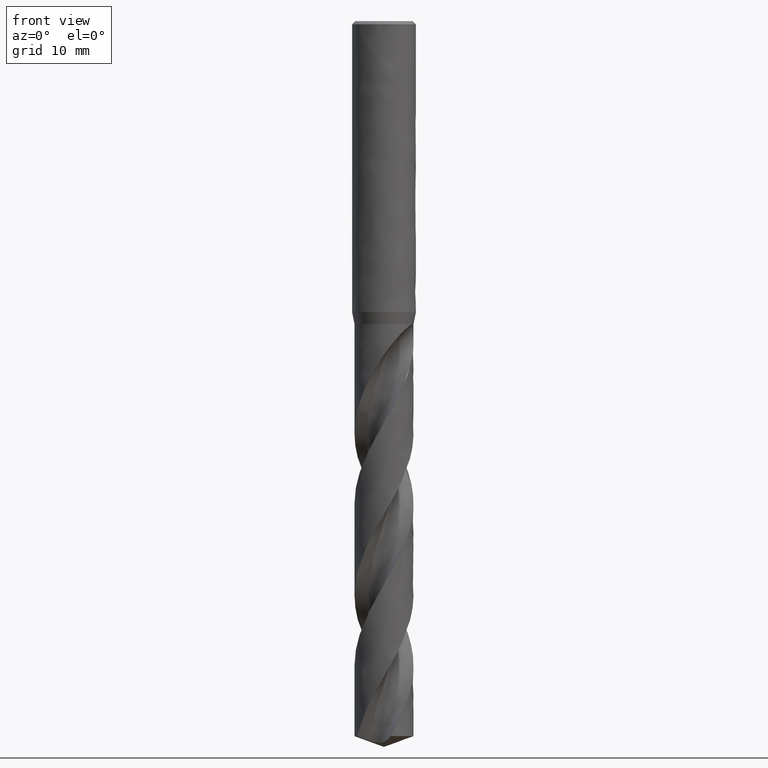
[diagram: clean part render]
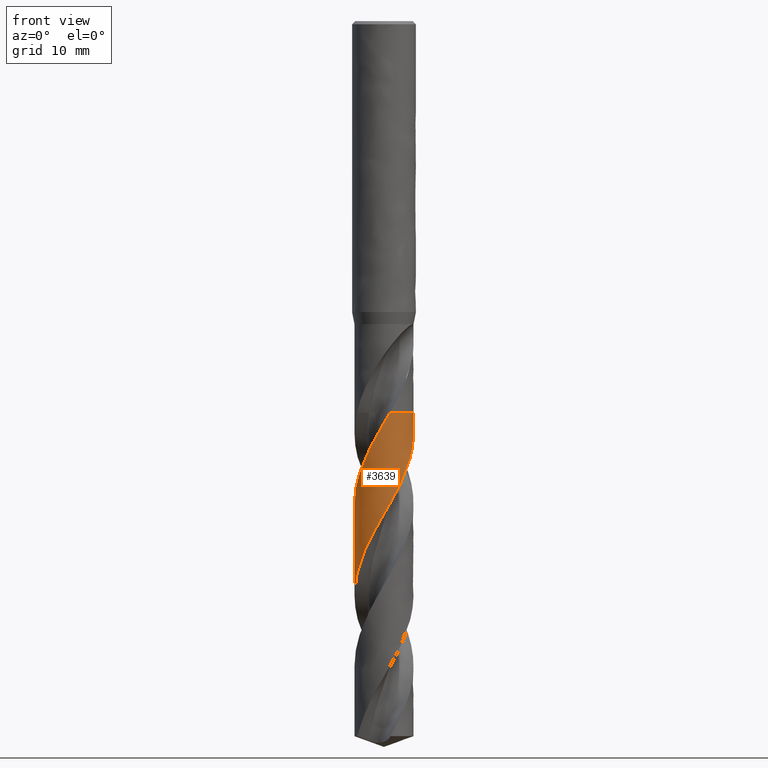
[diagram: same view with one face highlighted and labeled with its STEP entity id]
A machine part, front view. The second image highlights one B-rep face of the part: STEP entity #3639.
In plain terms, the highlighted face is a freeform B-spline surface patch.
Its self-contained STEP definition (entity closure, byte-faithful):
#1973 = VERTEX_POINT('', #1974);
#1974 = CARTESIAN_POINT('', (0.72714358249177, -3.62784539505765, -49.1));
#2050 = EDGE_CURVE('', #2051, #1973, #2053, .T.);
#2051 = VERTEX_POINT('', #2052);
#2052 = CARTESIAN_POINT('', (3.41056704865029, 1.43458440206941, -49.1));
#2053 = CIRCLE('', #2054, 3.7);
#2054 = AXIS2_PLACEMENT_3D('', #2055, #2056, #2057);
#2055 = CARTESIAN_POINT('', (1.84095513321743E-31, 3.00650789190675E-15, -49.1));
#2056 = DIRECTION('', (3.74939945665464E-33, 6.12323399573677E-17, -1.));
#2057 = DIRECTION('', (-1., 6.12323399573677E-17, 0.));
#3242 = EDGE_CURVE('', #2051, #3243, #3245, .T.);
#3243 = VERTEX_POINT('', #3244);
#3244 = CARTESIAN_POINT('', (-3.7, 4.63323017377835E-15, -71.9663909464213));
#3245 = B_SPLINE_CURVE_WITH_KNOTS('', 3, (#3246, #3247, #3248, #3249, #3250, #3251, #3252, #3253, #3254, #3255, #3256, #3257, #3258, #3259, #3260, #3261, #3262, #3263, #3264, #3265, #3266, #3267, #3268, #3269, #3270, #3271, #3272, #3273, #3274, #3275, #3276, #3277, #3278, #3279, #3280, #3281, #3282, #3283, #3284, #3285, #3286, #3287, #3288, #3289, #3290, #3291, #3292, #3293, #3294, #3295, #3296, #3297, #3298, #3299, #3300, #3301, #3302, #3303, #3304, #3305, #3306, #3307, #3308, #3309, #3310, #3311, #3312, #3313, #3314, #3315, #3316, #3317, #3318, #3319, #3320, #3321, #3322, #3323, #3324, #3325, #3326, #3327, #3328, #3329, #3330, #3331, #3332, #3333, #3334, #3335, #3336, #3337, #3338, #3339, #3340, #3341, #3342, #3343, #3344, #3345, #3346, #3347, #3348, #3349, #3350, #3351, #3352, #3353, #3354, #3355, #3356, #3357, #3358, #3359, #3360, #3361, #3362, #3363, #3364, #3365, #3366, #3367, #3368, #3369, #3370, #3371, #3372, #3373, #3374, #3375), .UNSPECIFIED., .F., .U., (4, 3, 3, 3, 3, 3, 3, 3, 3, 3, 3, 3, 3, 3, 3, 3, 3, 3, 3, 3, 3, 3, 3, 3, 3, 3, 3, 3, 3, 3, 3, 3, 3, 3, 3, 3, 3, 3, 3, 3, 3, 3, 3, 4), (10.555448820021, 10.8248205130351, 11.4889817246903, 12.1529726024439, 12.8167906537198, 13.4804325379984, 13.5388110314333, 14.2052948527528, 14.8715825006043, 15.5376811726015, 16.2035972184018, 16.86933592167, 17.5349016232911, 18.2002977721806, 18.8655269679581, 19.5305910465118, 20.1954913779098, 20.8602287099267, 21.5248031035643, 22.1892139146373, 22.8534597644177, 23.517538504727, 24.1814473171525, 24.8451827877249, 25.1404740618768, 25.1988482885492, 25.8653319677287, 26.5316206305821, 27.1977216439234, 27.8636412534247, 28.5293846860493, 29.1949562296614, 29.8603592926232, 30.5255964683822, 31.1906697677889, 31.8555805882083, 32.5203296591412, 33.1849170358249, 33.849342081974, 34.5136034433655, 35.1776990743116, 35.8416263425909, 36.5053818804481, 36.9049237263796), .UNSPECIFIED.);
#3246 = CARTESIAN_POINT('', (3.41056704865029, 1.43458440206941, -49.1));
#3247 = CARTESIAN_POINT('', (3.42790875579666, 1.39335639563393, -49.1778579612034));
#3248 = CARTESIAN_POINT('', (3.44450543114325, 1.35180710626196, -49.2557345464567));
#3249 = CARTESIAN_POINT('', (3.46033944921975, 1.30998125794746, -49.3335948555267));
#3250 = CARTESIAN_POINT('', (3.49937970810286, 1.20685570015691, -49.5255667610863));
#3251 = CARTESIAN_POINT('', (3.53381311034533, 1.10196290293011, -49.7175893742738));
#3252 = CARTESIAN_POINT('', (3.56348716277581, 0.995770676778559, -49.9095656663643));
#3253 = CARTESIAN_POINT('', (3.59315360485953, 0.889605685183733, -50.1014927233139));
#3254 = CARTESIAN_POINT('', (3.61807675981476, 0.782092577819872, -50.2934703451501));
#3255 = CARTESIAN_POINT('', (3.63814604377086, 0.673716085747212, -50.4854048606054));
#3256 = CARTESIAN_POINT('', (3.65821010400511, 0.565367802386485, -50.6772894184975));
#3257 = CARTESIAN_POINT('', (3.67343292657949, 0.456102739091882, -50.8692255505896));
#3258 = CARTESIAN_POINT('', (3.68374822319838, 0.346408758669597, -51.0611172541427));
#3259 = CARTESIAN_POINT('', (3.69406078229781, 0.236743889325431, -51.2529580326191));
#3260 = CARTESIAN_POINT('', (3.69947336968386, 0.126597113741289, -51.4448496753348));
#3261 = CARTESIAN_POINT('', (3.69996337973068, 0.0164617329716742, -51.6366974653215));
#3262 = CARTESIAN_POINT('', (3.70000648437639, 0.00677346923257118, -51.6535737132099));
#3263 = CARTESIAN_POINT('', (3.7000115358816, -0.0029149360646716, -51.6704500199266));
#3264 = CARTESIAN_POINT('', (3.69997853516747, -0.0126031464319417, -51.6873263212368));
#3265 = CARTESIAN_POINT('', (3.69960177926363, -0.123209554501178, -51.879996277674));
#3266 = CARTESIAN_POINT('', (3.69426031891267, -0.233820084066443, -52.0727178788542));
#3267 = CARTESIAN_POINT('', (3.68397994460921, -0.343935702885037, -52.26539505955));
#3268 = CARTESIAN_POINT('', (3.67370259624068, -0.454018910169955, -52.4580155274652));
#3269 = CARTESIAN_POINT('', (3.65848410682546, -0.563662337644609, -52.6506873260654));
#3270 = CARTESIAN_POINT('', (3.63839483817555, -0.672371178396579, -52.8433149209291));
#3271 = CARTESIAN_POINT('', (3.61831126734507, -0.781049186600293, -53.0358878817854));
#3272 = CARTESIAN_POINT('', (3.59334964388857, -0.888847492312801, -53.2285121116985));
#3273 = CARTESIAN_POINT('', (3.56362417945728, -0.995280215611553, -53.4210921644375));
#3274 = CARTESIAN_POINT('', (3.53390686494244, -1.10168375794314, -53.6136194169471));
#3275 = CARTESIAN_POINT('', (3.49941356249177, -1.20677538601968, -53.8061979940011));
#3276 = CARTESIAN_POINT('', (3.4603011672307, -1.31008237605962, -53.9987323075855));
#3277 = CARTESIAN_POINT('', (3.42119918813433, -1.41336185403806, -54.1912153466543));
#3278 = CARTESIAN_POINT('', (3.37746134796461, -1.51490849124359, -54.383749796415));
#3279 = CARTESIAN_POINT('', (3.32928577392758, -1.6142664698009, -54.5762399048183));
#3280 = CARTESIAN_POINT('', (3.28112271899695, -1.71359862877786, -54.768679991936));
#3281 = CARTESIAN_POINT('', (3.2285007257216, -1.81079178562925, -54.9611715112653));
#3282 = CARTESIAN_POINT('', (3.17165750735413, -1.90541036421139, -55.1536186933955));
#3283 = CARTESIAN_POINT('', (3.11482876978537, -2.00000483872923, -55.346016849644));
#3284 = CARTESIAN_POINT('', (3.05375323642229, -2.09207218973053, -55.5384663370026));
#3285 = CARTESIAN_POINT('', (2.98870641763661, -2.18120011671963, -55.7308716242149));
#3286 = CARTESIAN_POINT('', (2.92367591960788, -2.27030568081289, -55.9232286354318));
#3287 = CARTESIAN_POINT('', (2.85464416055478, -2.35651707631353, -56.1156367442162));
#3288 = CARTESIAN_POINT('', (2.78192245840782, -2.43944818256223, -56.3080009109514));
#3289 = CARTESIAN_POINT('', (2.70921880658944, -2.52235870439564, -56.5003173307788));
#3290 = CARTESIAN_POINT('', (2.63279092209755, -2.6020317466277, -56.6926846291233));
#3291 = CARTESIAN_POINT('', (2.55298328439224, -2.67811059323804, -56.8850081352684));
#3292 = CARTESIAN_POINT('', (2.47319529633288, -2.75417070827778, -57.0772842889431));
#3293 = CARTESIAN_POINT('', (2.3899895656269, -2.82667621678977, -57.2696113101473));
#3294 = CARTESIAN_POINT('', (2.3037404438282, -2.8953030873244, -57.461894499844));
#3295 = CARTESIAN_POINT('', (2.2175124658804, -2.96391313407825, -57.6541305515872));
#3296 = CARTESIAN_POINT('', (2.128200119651, -3.02868026586617, -57.8464175726058));
#3297 = CARTESIAN_POINT('', (2.03620428278854, -3.08931580107207, -58.038660648311));
#3298 = CARTESIAN_POINT('', (1.9442309956639, -3.14993647348126, -58.2308566019821));
#3299 = CARTESIAN_POINT('', (1.84953072971387, -3.2064571297431, -58.4231036165265));
#3300 = CARTESIAN_POINT('', (1.75252764337946, -3.25862652956592, -58.6153066108818));
#3301 = CARTESIAN_POINT('', (1.65554843400117, -3.31078308808113, -58.8074622951706));
#3302 = CARTESIAN_POINT('', (1.55622060195348, -3.3586157851133, -58.9996690320328));
#3303 = CARTESIAN_POINT('', (1.45498844812344, -3.40191249385215, -59.191831792982));
#3304 = CARTESIAN_POINT('', (1.35378142842226, -3.44519845279446, -59.3839468433628));
#3305 = CARTESIAN_POINT('', (1.25062192996901, -3.48397166846977, -59.5761127816961));
#3306 = CARTESIAN_POINT('', (1.14597132296801, -3.51806050643461, -59.7682349543927));
#3307 = CARTESIAN_POINT('', (1.04134704373043, -3.55214076840656, -59.960308793427));
#3308 = CARTESIAN_POINT('', (0.935181064461075, -3.58155571629171, -60.1524332422791));
#3309 = CARTESIAN_POINT('', (0.827948417141416, -3.60617545587469, -60.3445141925972));
#3310 = CARTESIAN_POINT('', (0.720743209063095, -3.63078889563209, -60.5365459922538));
#3311 = CARTESIAN_POINT('', (0.612418792543672, -3.65062176909798, -60.7286282445233));
#3312 = CARTESIAN_POINT('', (0.503459540731586, -3.6655870595099, -60.9206670730518));
#3313 = CARTESIAN_POINT('', (0.394528737402612, -3.6805484425913, -61.1126557616125));
#3314 = CARTESIAN_POINT('', (0.284909712041069, -3.69065218276554, -61.3046949631773));
#3315 = CARTESIAN_POINT('', (0.175091632315594, -3.69585482943978, -61.4966906435086));
#3316 = CARTESIAN_POINT('', (0.126234335809957, -3.69816945060065, -61.5821081804496));
#3317 = CARTESIAN_POINT('', (0.0773300582449406, -3.69951513200421, -61.6675306049299));
#3318 = CARTESIAN_POINT('', (0.02842189243308, -3.69989083569103, -61.752949564615));
#3319 = CARTESIAN_POINT('', (0.018753552705019, -3.69996510612872, -61.7698354876045));
#3320 = CARTESIAN_POINT('', (0.00908494899420803, -3.70000147895781, -61.7867214686601));
#3321 = CARTESIAN_POINT('', (-0.000583586878515991, -3.69999995397653, -61.8036074426076));
#3322 = CARTESIAN_POINT('', (-0.110973423764823, -3.69998254260866, -61.9964018774898));
#3323 = CARTESIAN_POINT('', (-0.221383639502314, -3.69501995122061, -62.1892473769054));
#3324 = CARTESIAN_POINT('', (-0.331317559869829, -3.68513618127251, -62.382048971185));
#3325 = CARTESIAN_POINT('', (-0.441219313044175, -3.67525530336297, -62.5747941507919));
#3326 = CARTESIAN_POINT('', (-0.550699816930741, -3.66045120319572, -62.767590233195));
#3327 = CARTESIAN_POINT('', (-0.65926693429322, -3.64079209916585, -62.9603424887385));
#3328 = CARTESIAN_POINT('', (-0.767803475468898, -3.62113853180723, -63.1530404587017));
#3329 = CARTESIAN_POINT('', (-0.875481004533972, -3.59662296352812, -63.3457893914933));
#3330 = CARTESIAN_POINT('', (-0.981816500435121, -3.56735705522642, -63.5384943992927));
#3331 = CARTESIAN_POINT('', (-1.08812303726417, -3.53809911710947, -63.7311469264208));
#3332 = CARTESIAN_POINT('', (-1.19314039044515, -3.50407910923688, -63.9238505485371));
#3333 = CARTESIAN_POINT('', (-1.29639862907679, -3.46545099439134, -64.1165101131126));
#3334 = CARTESIAN_POINT('', (-1.39962954952509, -3.42683309906859, -64.309118707331));
#3335 = CARTESIAN_POINT('', (-1.50115230644567, -3.3835908434082, -64.5017784792333));
#3336 = CARTESIAN_POINT('', (-1.60051352065068, -3.33591913424387, -64.6943941395509));
#3337 = CARTESIAN_POINT('', (-1.69984908067699, -3.28825973348938, -64.8869600682242));
#3338 = CARTESIAN_POINT('', (-1.79707212240148, -3.23615018480018, -65.0795771165018));
#3339 = CARTESIAN_POINT('', (-1.8917488865023, -3.17982486159494, -65.2721501601943));
#3340 = CARTESIAN_POINT('', (-1.98640168443007, -3.12351379640176, -65.464674456563));
#3341 = CARTESIAN_POINT('', (-2.07855546102001, -3.06296172409658, -65.657249619809));
#3342 = CARTESIAN_POINT('', (-2.16779890658774, -2.99844091164008, -65.8497810850144));
#3343 = CARTESIAN_POINT('', (-2.25702010346687, -2.93393618443729, -66.0422645514834));
#3344 = CARTESIAN_POINT('', (-2.3433764208325, -2.86543286403393, -66.2347985767722));
#3345 = CARTESIAN_POINT('', (-2.42648228240237, -2.79323893234849, -66.4272891445113));
#3346 = CARTESIAN_POINT('', (-2.50956767144612, -2.72106278511441, -66.6197322935954));
#3347 = CARTESIAN_POINT('', (-2.58944541829719, -2.6451620553415, -66.8122259348202));
#3348 = CARTESIAN_POINT('', (-2.66575937686533, -2.56587742198542, -67.0046761111588));
#3349 = CARTESIAN_POINT('', (-2.74205469175209, -2.48661215805364, -67.1970792714621));
#3350 = CARTESIAN_POINT('', (-2.81482549491301, -2.40392568444661, -67.3895330454378));
#3351 = CARTESIAN_POINT('', (-2.88374819946423, -2.31818815502254, -67.5819432065005));
#3352 = CARTESIAN_POINT('', (-2.9526541375383, -2.23247148253288, -67.774306560918));
#3353 = CARTESIAN_POINT('', (-3.01774727413463, -2.14366370206288, -67.9667206823974));
#3354 = CARTESIAN_POINT('', (-3.07873901362281, -2.05216132065606, -68.1590910498619));
#3355 = CARTESIAN_POINT('', (-3.13971591741742, -1.9606811963828, -68.35141462496));
#3356 = CARTESIAN_POINT('', (-3.19662266605874, -1.86646393293083, -68.5437890265517));
#3357 = CARTESIAN_POINT('', (-3.24920756698828, -1.76992942984349, -68.7361196569251));
#3358 = CARTESIAN_POINT('', (-3.30177962365478, -1.67341850604466, -68.9284033090754));
#3359 = CARTESIAN_POINT('', (-3.35005712341217, -1.57454523969245, -69.1207376582888));
#3360 = CARTESIAN_POINT('', (-3.39382683139039, -1.47375012757749, -69.3130284289361));
#3361 = CARTESIAN_POINT('', (-3.43758575646076, -1.37297984689174, -69.5052718276965));
#3362 = CARTESIAN_POINT('', (-3.47686031824471, -1.27023976991546, -69.6975655957711));
#3363 = CARTESIAN_POINT('', (-3.51147716113763, -1.1659880560318, -69.889816139854));
#3364 = CARTESIAN_POINT('', (-3.54608536727231, -1.0617623525169, -70.0820187182262));
#3365 = CARTESIAN_POINT('', (-3.5760552244506, -0.955974398008934, -70.2742714007056));
#3366 = CARTESIAN_POINT('', (-3.60125478777453, -0.849095962498368, -70.4664810216122));
#3367 = CARTESIAN_POINT('', (-3.62644796246183, -0.742244622992648, -70.6586419132051));
#3368 = CARTESIAN_POINT('', (-3.64688569190628, -0.634250716437761, -70.8508529422646));
#3369 = CARTESIAN_POINT('', (-3.66247866498589, -0.525594928174973, -71.0430208166097));
#3370 = CARTESIAN_POINT('', (-3.67806760481069, -0.416967244653892, -71.2351389851032));
#3371 = CARTESIAN_POINT('', (-3.68882190445362, -0.307625205696678, -71.4273074614269));
#3372 = CARTESIAN_POINT('', (-3.6946954603489, -0.198054172582986, -71.6194326013251));
#3373 = CARTESIAN_POINT('', (-3.69823099599529, -0.132098846662542, -71.7350806504435));
#3374 = CARTESIAN_POINT('', (-3.7, -0.0660454306028158, -71.8507402767692));
#3375 = CARTESIAN_POINT('', (-3.7, 4.488750705174E-15, -71.9663909464213));
#3639 = ADVANCED_FACE('', (#3640), #3731, .T.);
#3640 = FACE_OUTER_BOUND('', #3641, .T.);
#3641 = EDGE_LOOP('', (#3642, #3643, #3667, #3724, #3730));
#3642 = ORIENTED_EDGE('', *, *, #2050, .T.);
#3643 = ORIENTED_EDGE('', *, *, #3644, .T.);
#3644 = EDGE_CURVE('', #1973, #3645, #3647, .T.);
#3645 = VERTEX_POINT('', #3646);
#3646 = CARTESIAN_POINT('', (-0.250700221443543, -3.69149690491109, -50.8047274931118));
#3647 = B_SPLINE_CURVE_WITH_KNOTS('', 3, (#3648, #3649, #3650, #3651, #3652, #3653, #3654, #3655, #3656, #3657, #3658, #3659, #3660, #3661, #3662, #3663, #3664, #3665, #3666), .UNSPECIFIED., .F., .U., (4, 3, 3, 3, 3, 3, 4), (4.43471449933253, 4.82439352692806, 5.4881293337976, 5.78341993079446, 5.87097239223266, 5.92935237540858, 6.4023368117242), .UNSPECIFIED.);
#3648 = CARTESIAN_POINT('', (0.72714358249177, -3.62784539505765, -49.1));
#3649 = CARTESIAN_POINT('', (0.663521049296479, -3.64059751420194, -49.2125244443034));
#3650 = CARTESIAN_POINT('', (0.599551793029408, -3.65167729280187, -49.3250826453598));
#3651 = CARTESIAN_POINT('', (0.535354611803831, -3.66106479587819, -49.4376117107044));
#3652 = CARTESIAN_POINT('', (0.426008291211655, -3.67705442192326, -49.6292811737587));
#3653 = CARTESIAN_POINT('', (0.31591837745099, -3.68814406172143, -49.8209990337498));
#3654 = CARTESIAN_POINT('', (0.205585509098997, -3.69428404409413, -50.0126717438922));
#3655 = CARTESIAN_POINT('', (0.156499324163911, -3.69701567171105, -50.0979453548985));
#3656 = CARTESIAN_POINT('', (0.107357422287585, -3.69876885430508, -50.1832238632673));
#3657 = CARTESIAN_POINT('', (0.0582040330285359, -3.69954217309915, -50.2684990083998));
#3658 = CARTESIAN_POINT('', (0.043630252957559, -3.69977145897749, -50.293782742226));
#3659 = CARTESIAN_POINT('', (0.0290551830907759, -3.69991462555224, -50.3190666602561));
#3660 = CARTESIAN_POINT('', (0.0144799717314964, -3.6999716661643, -50.344350544332));
#3661 = CARTESIAN_POINT('', (0.00476122048267163, -3.70000970084566, -50.3612098387794));
#3662 = CARTESIAN_POINT('', (-0.00495764072340317, -3.70000944256536, -50.3780691997148));
#3663 = CARTESIAN_POINT('', (-0.0146762717132745, -3.69997089272991, -50.3949285623163));
#3664 = CARTESIAN_POINT('', (-0.0934149240806846, -3.69965856869008, -50.5315201761349));
#3665 = CARTESIAN_POINT('', (-0.1721495020004, -3.69683151124185, -50.6681314890017));
#3666 = CARTESIAN_POINT('', (-0.250700221443463, -3.69149690491109, -50.8047274931116));
#3667 = ORIENTED_EDGE('', *, *, #3668, .T.);
#3668 = EDGE_CURVE('', #3645, #3669, #3671, .T.);
#3669 = VERTEX_POINT('', #3670);
#3670 = CARTESIAN_POINT('', (-3.7, 3.92954416952289E-15, -60.4743263814317));
#3671 = B_SPLINE_CURVE_WITH_KNOTS('', 3, (#3672, #3673, #3674, #3675, #3676, #3677, #3678, #3679, #3680, #3681, #3682, #3683, #3684, #3685, #3686, #3687, #3688, #3689, #3690, #3691, #3692, #3693, #3694, #3695, #3696, #3697, #3698, #3699, #3700, #3701, #3702, #3703, #3704, #3705, #3706, #3707, #3708, #3709, #3710, #3711, #3712, #3713, #3714, #3715, #3716, #3717, #3718, #3719, #3720, #3721, #3722, #3723), .UNSPECIFIED., .F., .U., (4, 3, 3, 3, 3, 3, 3, 3, 3, 3, 3, 3, 3, 3, 3, 3, 3, 4), (0., 0.666353060821311, 1.33251252450275, 1.99848545059163, 2.66427751432135, 3.32989338283223, 3.99533679794326, 4.66061064193107, 5.32571729858609, 5.99065848492867, 6.65543520080515, 7.32004772469277, 7.98449559947321, 8.64877761360886, 9.31289192916223, 9.97683616762544, 10.6406071750068, 11.1537524352055), .UNSPECIFIED.);
#3672 = CARTESIAN_POINT('', (-0.250700221443543, -3.69149690491109, -50.8047274931118));
#3673 = CARTESIAN_POINT('', (-0.361364565366421, -3.68398136954914, -50.9971675787595));
#3674 = CARTESIAN_POINT('', (-0.471708318997514, -3.67148329157756, -51.1896619323723));
#3675 = CARTESIAN_POINT('', (-0.581229157857723, -3.65406248797936, -51.3821144416028));
#3676 = CARTESIAN_POINT('', (-0.690718177368092, -3.63664674568868, -51.574511037148));
#3677 = CARTESIAN_POINT('', (-0.799440360579984, -3.61430233282104, -51.7669622661119));
#3678 = CARTESIAN_POINT('', (-0.906902476692056, -3.58713366042732, -51.9593716221509));
#3679 = CARTESIAN_POINT('', (-1.01433450132375, -3.55997259578973, -52.1517270998319));
#3680 = CARTESIAN_POINT('', (-1.12056099997277, -3.52797640888803, -52.3441374184027));
#3681 = CARTESIAN_POINT('', (-1.22510193637753, -3.49129277567557, -52.5365055467726));
#3682 = CARTESIAN_POINT('', (-1.3296144819579, -3.45461910486276, -52.728821432548));
#3683 = CARTESIAN_POINT('', (-1.43249371546773, -3.41324254947482, -52.9211922811969));
#3684 = CARTESIAN_POINT('', (-1.53327602496559, -3.36735276311613, -53.1135208641907));
#3685 = CARTESIAN_POINT('', (-1.63403166343199, -3.321475121031, -53.3057985493463));
#3686 = CARTESIAN_POINT('', (-1.73274065574575, -3.2710642557024, -53.4981311306269));
#3687 = CARTESIAN_POINT('', (-1.82895881777234, -3.21635036071832, -53.6904215878179));
#3688 = CARTESIAN_POINT('', (-1.92515205078211, -3.16165064147381, -53.8826622247678));
#3689 = CARTESIAN_POINT('', (-2.01890320665186, -3.10262310023122, -54.0749573545932));
#3690 = CARTESIAN_POINT('', (-2.1097900558447, -3.03953712269793, -54.2672108329483));
#3691 = CARTESIAN_POINT('', (-2.2006537448638, -2.97646722100194, -54.4594153204539));
#3692 = CARTESIAN_POINT('', (-2.2887004773032, -2.90930906911019, -54.6516738457634));
#3693 = CARTESIAN_POINT('', (-2.37353350996824, -2.83836901706911, -54.8438910486477));
#3694 = CARTESIAN_POINT('', (-2.45834522358009, -2.76744679269131, -55.0360599461885));
#3695 = CARTESIAN_POINT('', (-2.53998799337635, -2.69270851344705, -55.2282828129248));
#3696 = CARTESIAN_POINT('', (-2.61809474800922, -2.61449419399748, -55.420464313003));
#3697 = CARTESIAN_POINT('', (-2.69618207064729, -2.53629933330351, -55.6125980007001));
#3698 = CARTESIAN_POINT('', (-2.77077436129265, -2.45459093932346, -55.8047858503766));
#3699 = CARTESIAN_POINT('', (-2.841537582185, -2.36973926182401, -55.9969320955606));
#3700 = CARTESIAN_POINT('', (-2.91228330008586, -2.28490857203782, -56.1890308141616));
#3701 = CARTESIAN_POINT('', (-2.97923666065358, -2.19689446563449, -56.3811839253953));
#3702 = CARTESIAN_POINT('', (-3.04209912873464, -2.10609422651313, -56.5732952131983));
#3703 = CARTESIAN_POINT('', (-3.10494607052933, -2.01531641397727, -56.7653590517846));
#3704 = CARTESIAN_POINT('', (-3.16373458611715, -1.92170990710878, -56.9574773638525));
#3705 = CARTESIAN_POINT('', (-3.21820346389715, -1.82569615899261, -57.1495538302931));
#3706 = CARTESIAN_POINT('', (-3.27265884772124, -1.72970619703354, -57.3415827122878));
#3707 = CARTESIAN_POINT('', (-3.32282310390623, -1.63126368044066, -57.5336658463057));
#3708 = CARTESIAN_POINT('', (-3.36847375366322, -1.53081173593686, -57.7257074516069));
#3709 = CARTESIAN_POINT('', (-3.41411300802489, -1.43038486642377, -57.9177011191454));
#3710 = CARTESIAN_POINT('', (-3.45526344118455, -1.32789990772026, -58.1097485421466));
#3711 = CARTESIAN_POINT('', (-3.4917427582913, -1.22381882234271, -58.3017549303836));
#3712 = CARTESIAN_POINT('', (-3.52821286616216, -1.11976401232726, -58.4937128464381));
#3713 = CARTESIAN_POINT('', (-3.56003260433554, -1.01406139064028, -58.6857241940043));
#3714 = CARTESIAN_POINT('', (-3.58706164794173, -0.907187265048201, -58.8776946757772));
#3715 = CARTESIAN_POINT('', (-3.6140837695151, -0.800340509503521, -59.0696159946572));
#3716 = CARTESIAN_POINT('', (-3.63633126645173, -0.692269133455285, -59.2615908336755));
#3717 = CARTESIAN_POINT('', (-3.65370715152962, -0.583458696791296, -59.453524635691));
#3718 = CARTESIAN_POINT('', (-3.67107850302895, -0.474676650086235, -59.6454083598563));
#3719 = CARTESIAN_POINT('', (-3.68358939573765, -0.365102282566007, -59.837345857277));
#3720 = CARTESIAN_POINT('', (-3.69118675754139, -0.255226019346315, -60.0292420479955));
#3721 = CARTESIAN_POINT('', (-3.69706009361098, -0.170283346266995, -60.1775923369089));
#3722 = CARTESIAN_POINT('', (-3.7, -0.0851323522653157, -60.3259685551975));
#3723 = CARTESIAN_POINT('', (-3.7, 3.0691213254384E-15, -60.4743263814317));
#3724 = ORIENTED_EDGE('', *, *, #3725, .T.);
#3725 = EDGE_CURVE('', #3669, #3243, #3726, .T.);
#3726 = LINE('', #3727, #3728);
#3727 = CARTESIAN_POINT('', (-3.7, 3.92954416952289E-15, -60.4743263814317));
#3728 = VECTOR('', #3729, 11.4920645649896);
#3729 = DIRECTION('', (0., 7.03686004255461E-16, -11.4920645649896));
#3730 = ORIENTED_EDGE('', *, *, #3242, .F.);
#3731 = (
   BOUNDED_SURFACE ()
   B_SPLINE_SURFACE (2, 1, ((#3732, #3733), (#3734, #3735), (#3736, #3737), (#3738, #3739), (#3740, #3741), (#3742, #3743), (#3744, #3745)), .UNSPECIFIED., .F., .F., .U.)
   B_SPLINE_SURFACE_WITH_KNOTS ((3, 2, 2, 3), (2, 2), (10.0935038713915, 11.6238928182822, 17.4358392274234, 23.2477856365645), (0.214894262756304, 0.657584012695821), .UNSPECIFIED.)
   GEOMETRIC_REPRESENTATION_ITEM ()
   RATIONAL_B_SPLINE_SURFACE (((0.886368246717071, 0.886368246717071), (0.922876001749372, 0.922876001749372), (1., 1.), (0.707106781186548, 0.707106781186548), (1., 1.), (0.707106781186548, 0.707106781186548), (1., 1.)))
   REPRESENTATION_ITEM ('')
   SURFACE ()
);
#3732 = CARTESIAN_POINT('', (3.41056704865026, 1.43458440206947, -49.1));
#3733 = CARTESIAN_POINT('', (3.41056704865026, 1.43458440206948, -71.9663909464213));
#3734 = CARTESIAN_POINT('', (3.7, 0.746489309690797, -49.1));
#3735 = CARTESIAN_POINT('', (3.7, 0.746489309690799, -71.9663909464213));
#3736 = CARTESIAN_POINT('', (3.7, 3.23306754974901E-15, -49.1));
#3737 = CARTESIAN_POINT('', (3.7, 4.63323017377835E-15, -71.9663909464213));
#3738 = CARTESIAN_POINT('', (3.7, -3.7, -49.1));
#3739 = CARTESIAN_POINT('', (3.7, -3.7, -71.9663909464213));
#3740 = CARTESIAN_POINT('', (4.53119315684521E-16, -3.7, -49.1));
#3741 = CARTESIAN_POINT('', (4.53119315684521E-16, -3.7, -71.9663909464213));
#3742 = CARTESIAN_POINT('', (-3.7, -3.7, -49.1));
#3743 = CARTESIAN_POINT('', (-3.7, -3.7, -71.9663909464213));
#3744 = CARTESIAN_POINT('', (-3.7, 3.23306754974901E-15, -49.1));
#3745 = CARTESIAN_POINT('', (-3.7, 4.63323017377835E-15, -71.9663909464213));